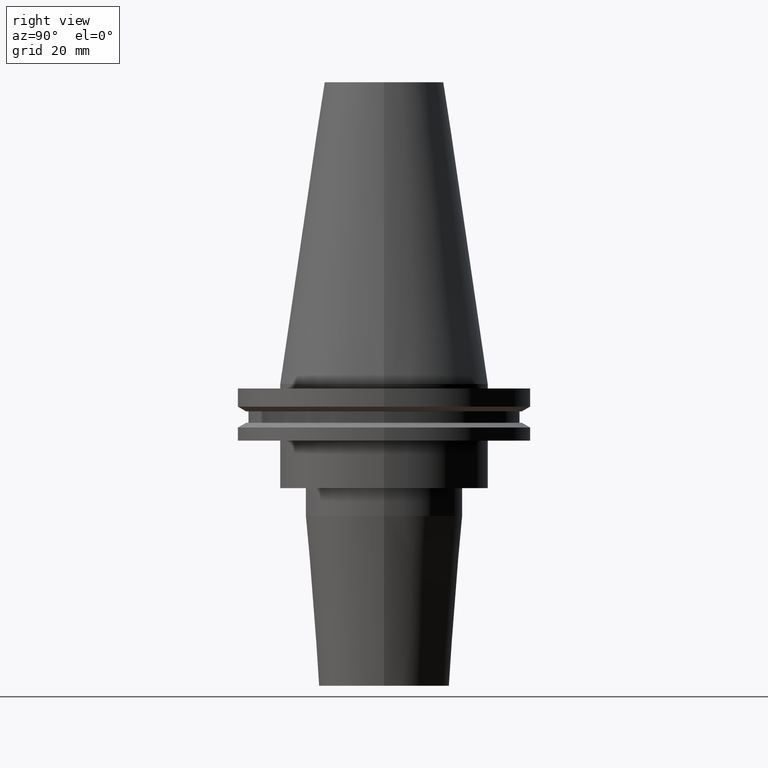
[diagram: clean part render]
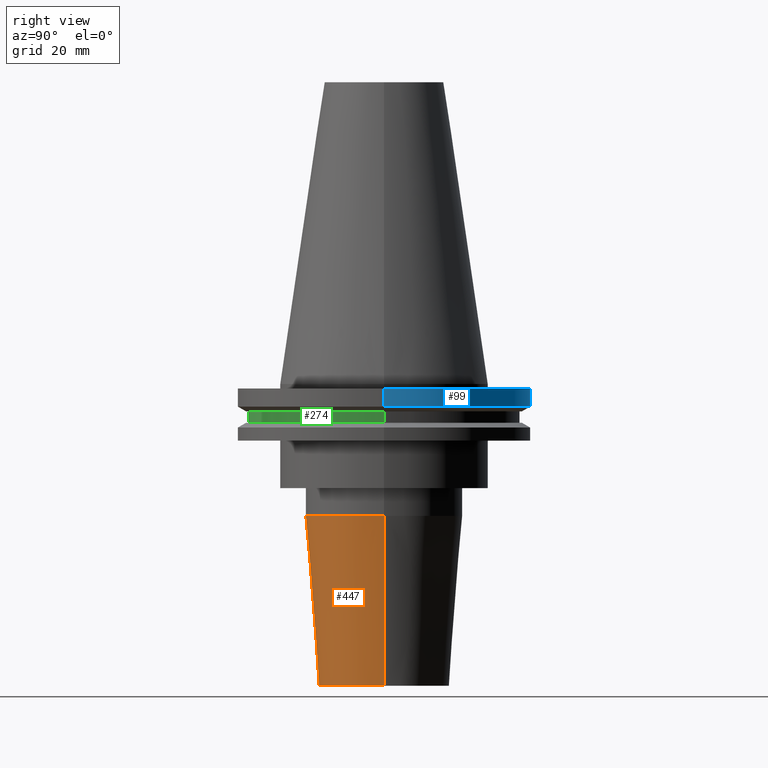
[diagram: same view with three faces highlighted in distinct colors, each labeled with its STEP entity id]
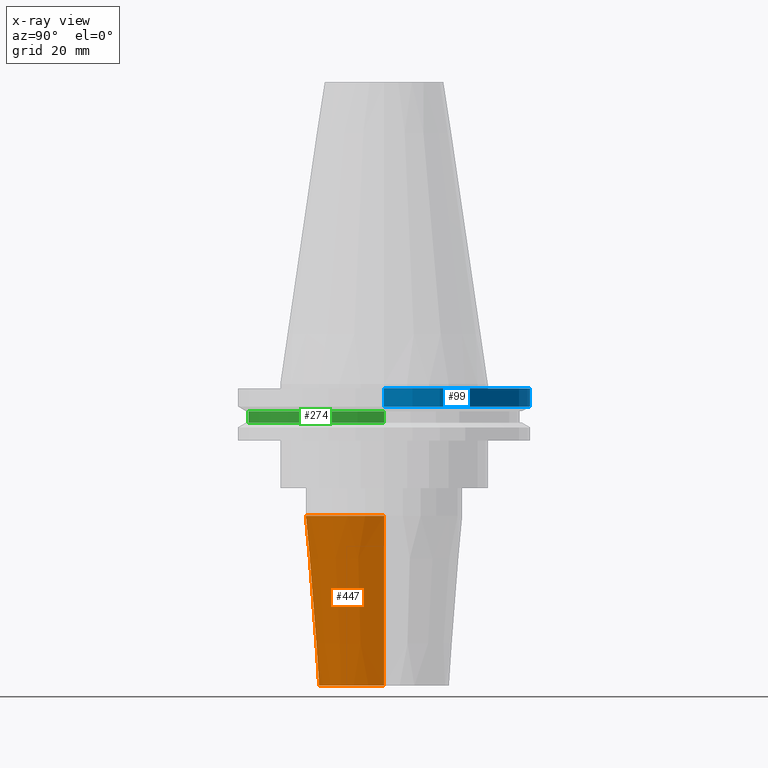
[diagram: x-ray of the same camera — body ghosted, the three highlighted faces saturated]
A machine part, right view with three faces highlighted in distinct colors.
The next image is the same camera in x-ray (body ghosted, the three faces saturated) — at least one of them is partly hidden behind the body in this view.
Their STEP definitions:

[orange] entity #447 — the highlighted conical surface has half-angle 4.5 deg.
#11 = DIRECTION ( 'NONE',  ( 0.07845909572783764385, 0.000000000000000000, 0.9969173337331286300 ) ) ;
#49 = CARTESIAN_POINT ( 'NONE',  ( 0.000000000000000000, 0.000000000000000000, -101.5999999999999943 ) ) ;
#111 = CIRCLE ( 'NONE', #541, 26.50000000000000000 ) ;
#153 = DIRECTION ( 'NONE',  ( 1.000000000000000000, 0.000000000000000000, 0.000000000000000000 ) ) ;
#158 = VERTEX_POINT ( 'NONE', #677 ) ;
#195 = EDGE_CURVE ( 'NONE', #158, #692, #763, .T. ) ;
#197 = DIRECTION ( 'NONE',  ( 1.000000000000000000, 0.000000000000000000, 0.000000000000000000 ) ) ;
#218 = CARTESIAN_POINT ( 'NONE',  ( 0.000000000000000000, 0.000000000000000000, -101.5999999999999943 ) ) ;
#225 = DIRECTION ( 'NONE',  ( -0.07845909572783764385, 9.608468044709212160E-18, 0.9969173337331286300 ) ) ;
#236 = ORIENTED_EDGE ( 'NONE', *, *, #246, .T. ) ;
#244 = VERTEX_POINT ( 'NONE', #436 ) ;
#246 = EDGE_CURVE ( 'NONE', #158, #416, #487, .T. ) ;
#300 = VECTOR ( 'NONE', #225, 999.9999999999998863 ) ;
#315 = DIRECTION ( 'NONE',  ( -0.000000000000000000, -0.000000000000000000, 1.000000000000000000 ) ) ;
#341 = CARTESIAN_POINT ( 'NONE',  ( 22.00000000000000000, 0.000000000000000000, -101.5999999999999943 ) ) ;
#390 = VECTOR ( 'NONE', #11, 999.9999999999998863 ) ;
#416 = VERTEX_POINT ( 'NONE', #725 ) ;
#436 = CARTESIAN_POINT ( 'NONE',  ( 26.50000000000000000, 0.000000000000000000, -44.42207868720844743 ) ) ;
#447 = ADVANCED_FACE ( 'NONE', ( #713 ), #462, .T. ) ;
#453 = ORIENTED_EDGE ( 'NONE', *, *, #522, .T. ) ;
#462 = CONICAL_SURFACE ( 'NONE', #761, 22.00000000000000000, 0.07853981633973751431 ) ;
#476 = DIRECTION ( 'NONE',  ( -0.000000000000000000, -0.000000000000000000, 1.000000000000000000 ) ) ;
#487 = CIRCLE ( 'NONE', #786, 22.00000000000000000 ) ;
#502 = DIRECTION ( 'NONE',  ( 1.000000000000000000, 0.000000000000000000, 0.000000000000000000 ) ) ;
#522 = EDGE_CURVE ( 'NONE', #416, #244, #607, .T. ) ;
#525 = CARTESIAN_POINT ( 'NONE',  ( -26.50000000000000000, 3.245314017740485765E-15, -44.42207868720844743 ) ) ;
#541 = AXIS2_PLACEMENT_3D ( 'NONE', #812, #476, #153 ) ;
#607 = LINE ( 'NONE', #341, #390 ) ;
#652 = ORIENTED_EDGE ( 'NONE', *, *, #195, .F. ) ;
#677 = CARTESIAN_POINT ( 'NONE',  ( -22.00000000000000000, 2.969768487932331287E-15, -101.5999999999999943 ) ) ;
#692 = VERTEX_POINT ( 'NONE', #525 ) ;
#713 = FACE_OUTER_BOUND ( 'NONE', #765, .T. ) ;
#725 = CARTESIAN_POINT ( 'NONE',  ( 22.00000000000000000, 0.000000000000000000, -101.5999999999999943 ) ) ;
#753 = EDGE_CURVE ( 'NONE', #692, #244, #111, .T. ) ;
#761 = AXIS2_PLACEMENT_3D ( 'NONE', #49, #315, #197 ) ;
#763 = LINE ( 'NONE', #766, #300 ) ;
#765 = EDGE_LOOP ( 'NONE', ( #652, #236, #453, #844 ) ) ;
#766 = CARTESIAN_POINT ( 'NONE',  ( -22.00000000000000000, 2.694222958124176809E-15, -101.5999999999999943 ) ) ;
#786 = AXIS2_PLACEMENT_3D ( 'NONE', #218, #817, #502 ) ;
#812 = CARTESIAN_POINT ( 'NONE',  ( 0.000000000000000000, 0.000000000000000000, -44.42207868720844743 ) ) ;
#817 = DIRECTION ( 'NONE',  ( -0.000000000000000000, -0.000000000000000000, 1.000000000000000000 ) ) ;
#844 = ORIENTED_EDGE ( 'NONE', *, *, #753, .F. ) ;

[blue] entity #99 — the highlighted cylindrical surface (partial cylindrical patch) has radius 49.215 mm, axis along (-0, -0, 1).
#13 = CYLINDRICAL_SURFACE ( 'NONE', #160, 49.21499999999999631 ) ;
#15 = ORIENTED_EDGE ( 'NONE', *, *, #822, .T. ) ;
#16 = CARTESIAN_POINT ( 'NONE',  ( -49.21500000000000341, 6.027099222003699404E-15, -7.602389855251287187 ) ) ;
#31 = ORIENTED_EDGE ( 'NONE', *, *, #451, .F. ) ;
#63 = EDGE_LOOP ( 'NONE', ( #529, #15, #803, #31 ) ) ;
#71 = CARTESIAN_POINT ( 'NONE',  ( -49.21499999999999631, 6.027099222003697826E-15, -1.499999999999987566 ) ) ;
#76 = LINE ( 'NONE', #340, #784 ) ;
#99 = ADVANCED_FACE ( 'NONE', ( #198 ), #13, .T. ) ;
#127 = DIRECTION ( 'NONE',  ( -0.000000000000000000, -0.000000000000000000, 1.000000000000000000 ) ) ;
#160 = AXIS2_PLACEMENT_3D ( 'NONE', #482, #277, #206 ) ;
#176 = CIRCLE ( 'NONE', #302, 49.21499999999999631 ) ;
#198 = FACE_OUTER_BOUND ( 'NONE', #63, .T. ) ;
#206 = DIRECTION ( 'NONE',  ( 1.000000000000000000, 0.000000000000000000, 0.000000000000000000 ) ) ;
#217 = VECTOR ( 'NONE', #260, 1000.000000000000000 ) ;
#255 = CARTESIAN_POINT ( 'NONE',  ( 0.000000000000000000, 0.000000000000000000, -7.602389855251287187 ) ) ;
#260 = DIRECTION ( 'NONE',  ( -0.000000000000000000, -0.000000000000000000, 1.000000000000000000 ) ) ;
#277 = DIRECTION ( 'NONE',  ( -0.000000000000000000, -0.000000000000000000, 1.000000000000000000 ) ) ;
#293 = VERTEX_POINT ( 'NONE', #358 ) ;
#302 = AXIS2_PLACEMENT_3D ( 'NONE', #393, #769, #781 ) ;
#304 = VERTEX_POINT ( 'NONE', #757 ) ;
#318 = EDGE_CURVE ( 'NONE', #304, #726, #679, .T. ) ;
#340 = CARTESIAN_POINT ( 'NONE',  ( -49.21499999999999631, 6.027099222003697826E-15, 101.5999999999999943 ) ) ;
#358 = CARTESIAN_POINT ( 'NONE',  ( 49.21499999999999631, 0.000000000000000000, -1.499999999999987566 ) ) ;
#372 = EDGE_CURVE ( 'NONE', #293, #711, #176, .T. ) ;
#393 = CARTESIAN_POINT ( 'NONE',  ( 0.000000000000000000, 0.000000000000000000, -1.499999999999987566 ) ) ;
#451 = EDGE_CURVE ( 'NONE', #304, #293, #794, .T. ) ;
#482 = CARTESIAN_POINT ( 'NONE',  ( 0.000000000000000000, 0.000000000000000000, 101.5999999999999943 ) ) ;
#529 = ORIENTED_EDGE ( 'NONE', *, *, #318, .T. ) ;
#551 = DIRECTION ( 'NONE',  ( -0.000000000000000000, -0.000000000000000000, 1.000000000000000000 ) ) ;
#679 = CIRCLE ( 'NONE', #693, 49.21500000000000341 ) ;
#693 = AXIS2_PLACEMENT_3D ( 'NONE', #255, #127, #832 ) ;
#711 = VERTEX_POINT ( 'NONE', #71 ) ;
#726 = VERTEX_POINT ( 'NONE', #16 ) ;
#757 = CARTESIAN_POINT ( 'NONE',  ( 49.21500000000000341, 0.000000000000000000, -7.602389855251287187 ) ) ;
#769 = DIRECTION ( 'NONE',  ( -0.000000000000000000, -0.000000000000000000, 1.000000000000000000 ) ) ;
#781 = DIRECTION ( 'NONE',  ( 1.000000000000000000, 0.000000000000000000, 0.000000000000000000 ) ) ;
#784 = VECTOR ( 'NONE', #551, 1000.000000000000000 ) ;
#794 = LINE ( 'NONE', #852, #217 ) ;
#803 = ORIENTED_EDGE ( 'NONE', *, *, #372, .F. ) ;
#822 = EDGE_CURVE ( 'NONE', #726, #711, #76, .T. ) ;
#832 = DIRECTION ( 'NONE',  ( 1.000000000000000000, 0.000000000000000000, 0.000000000000000000 ) ) ;
#852 = CARTESIAN_POINT ( 'NONE',  ( 49.21499999999999631, 0.000000000000000000, 101.5999999999999943 ) ) ;

[green] entity #274 — the highlighted cylindrical surface (partial cylindrical patch) has radius 45.645 mm, axis along (-0, -0, 1).
#38 = DIRECTION ( 'NONE',  ( 1.000000000000000000, 0.000000000000000000, 0.000000000000000000 ) ) ;
#57 = CARTESIAN_POINT ( 'NONE',  ( 45.64500000000000313, 0.000000000000000000, 101.5999999999999943 ) ) ;
#60 = DIRECTION ( 'NONE',  ( -0.000000000000000000, -0.000000000000000000, 1.000000000000000000 ) ) ;
#136 = DIRECTION ( 'NONE',  ( -0.000000000000000000, -0.000000000000000000, 1.000000000000000000 ) ) ;
#139 = CARTESIAN_POINT ( 'NONE',  ( 45.64500000000000313, 0.000000000000000000, -13.05499999999999794 ) ) ;
#154 = DIRECTION ( 'NONE',  ( -0.000000000000000000, -0.000000000000000000, 1.000000000000000000 ) ) ;
#166 = CARTESIAN_POINT ( 'NONE',  ( 0.000000000000000000, 0.000000000000000000, -9.204999999999991189 ) ) ;
#212 = DIRECTION ( 'NONE',  ( -0.000000000000000000, -0.000000000000000000, 1.000000000000000000 ) ) ;
#213 = ORIENTED_EDGE ( 'NONE', *, *, #733, .T. ) ;
#219 = VERTEX_POINT ( 'NONE', #432 ) ;
#227 = CARTESIAN_POINT ( 'NONE',  ( -45.64500000000000313, 5.589900314708094957E-15, -13.05499999999999794 ) ) ;
#229 = CIRCLE ( 'NONE', #648, 45.64500000000000313 ) ;
#251 = EDGE_CURVE ( 'NONE', #718, #219, #429, .T. ) ;
#263 = DIRECTION ( 'NONE',  ( 1.000000000000000000, 0.000000000000000000, 0.000000000000000000 ) ) ;
#274 = ADVANCED_FACE ( 'NONE', ( #820 ), #700, .T. ) ;
#279 = CARTESIAN_POINT ( 'NONE',  ( -45.64500000000000313, 5.589900314708094957E-15, 101.5999999999999943 ) ) ;
#292 = CARTESIAN_POINT ( 'NONE',  ( 0.000000000000000000, 0.000000000000000000, 101.5999999999999943 ) ) ;
#329 = AXIS2_PLACEMENT_3D ( 'NONE', #292, #560, #505 ) ;
#355 = ORIENTED_EDGE ( 'NONE', *, *, #582, .T. ) ;
#409 = ORIENTED_EDGE ( 'NONE', *, *, #251, .F. ) ;
#429 = CIRCLE ( 'NONE', #838, 45.64500000000000313 ) ;
#432 = CARTESIAN_POINT ( 'NONE',  ( 45.64500000000000313, 0.000000000000000000, -9.204999999999991189 ) ) ;
#449 = ORIENTED_EDGE ( 'NONE', *, *, #798, .F. ) ;
#474 = VECTOR ( 'NONE', #136, 1000.000000000000000 ) ;
#503 = VERTEX_POINT ( 'NONE', #139 ) ;
#505 = DIRECTION ( 'NONE',  ( 1.000000000000000000, 0.000000000000000000, 0.000000000000000000 ) ) ;
#524 = EDGE_LOOP ( 'NONE', ( #449, #213, #355, #409 ) ) ;
#560 = DIRECTION ( 'NONE',  ( -0.000000000000000000, -0.000000000000000000, 1.000000000000000000 ) ) ;
#582 = EDGE_CURVE ( 'NONE', #503, #219, #647, .T. ) ;
#647 = LINE ( 'NONE', #57, #814 ) ;
#648 = AXIS2_PLACEMENT_3D ( 'NONE', #675, #212, #263 ) ;
#675 = CARTESIAN_POINT ( 'NONE',  ( 0.000000000000000000, 0.000000000000000000, -13.05499999999999794 ) ) ;
#686 = CARTESIAN_POINT ( 'NONE',  ( -45.64500000000000313, 5.589900314708094957E-15, -9.204999999999991189 ) ) ;
#700 = CYLINDRICAL_SURFACE ( 'NONE', #329, 45.64500000000000313 ) ;
#718 = VERTEX_POINT ( 'NONE', #686 ) ;
#731 = LINE ( 'NONE', #279, #474 ) ;
#733 = EDGE_CURVE ( 'NONE', #848, #503, #229, .T. ) ;
#798 = EDGE_CURVE ( 'NONE', #848, #718, #731, .T. ) ;
#814 = VECTOR ( 'NONE', #60, 1000.000000000000000 ) ;
#820 = FACE_OUTER_BOUND ( 'NONE', #524, .T. ) ;
#838 = AXIS2_PLACEMENT_3D ( 'NONE', #166, #154, #38 ) ;
#848 = VERTEX_POINT ( 'NONE', #227 ) ;